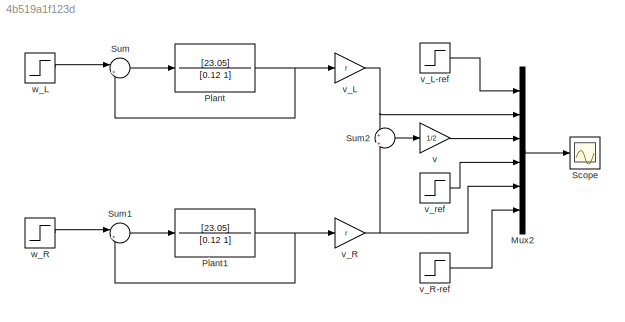
MODEL slx_4b519a1f123d
KIND model
CONFIG AbsTol = auto
CONFIG FixedStep = 0.002
CONFIG MaxStep = .1
CONFIG MinStep = auto
CONFIG PreLoadFcn = load_inputs\n
CONFIG RelTol = 1e-3
CONFIG SampleTimeConstraint = Unconstrained
CONFIG Solver = ode1
CONFIG SolverMode = Auto
CONFIG SolverName = ode1
CONFIG StartTime = 0.0
CONFIG StopTime = 3.14
BLOCK [Mux] Mux2
  DisplayOption = bar
  Inputs = 6
  Ports = [6, 1]
BLOCK [TransferFcn] Plant
  Denominator = [0.12 1]
  Numerator = [23.05]
BLOCK [TransferFcn] Plant1
  Denominator = [0.12 1]
  Numerator = [23.05]
BLOCK [Scope] Scope
  Ports = [1]
  ScopeSpecificationString = Simulink.scopes.TimeScopeBlockCfg('CurrentConfiguration', extmgr.ConfigurationSet(extmgr.Configuration('Core','General UI',true),extmgr.Configuration('Core','Source UI',true),extmgr.Configuration('Sources','WiredSimulink',true,'DataLoggingVariableName','Results','DataLogging',true,'DataLoggingSaveFormat','StructureWithTime'),extmgr.Configuration('Visuals','Time Domain',true,'SerializedDisplays',{s...<+1556ch>
BLOCK [Sum] Sum
  IconShape = round
  InputSameDT = off
  Inputs = |+-
  OutDataTypeStr = Inherit: Inherit via internal rule
  Ports = [2, 1]
  SaturateOnIntegerOverflow = off
BLOCK [Sum] Sum1
  IconShape = round
  InputSameDT = off
  Inputs = |+-
  OutDataTypeStr = Inherit: Inherit via internal rule
  Ports = [2, 1]
  SaturateOnIntegerOverflow = off
BLOCK [Sum] Sum2
  IconShape = round
  InputSameDT = off
  Inputs = +|+
  OutDataTypeStr = Inherit: Inherit via internal rule
  Ports = [2, 1]
  SaturateOnIntegerOverflow = off
BLOCK [Gain] v
  Gain = 1/2
  OutDataTypeStr = Inherit: Inherit via internal rule
  ParamDataTypeStr = Inherit: Inherit via internal rule
  SaturateOnIntegerOverflow = off
BLOCK [Gain] v_L
  Gain = r
  OutDataTypeStr = Inherit: Inherit via internal rule
  ParamDataTypeStr = Inherit: Inherit via internal rule
  SaturateOnIntegerOverflow = off
BLOCK [Step] v_L-ref
  After = v_L
  SampleTime = 0
  Time = 0
BLOCK [Gain] v_R
  Gain = r
  OutDataTypeStr = Inherit: Inherit via internal rule
  ParamDataTypeStr = Inherit: Inherit via internal rule
  SaturateOnIntegerOverflow = off
BLOCK [Step] v_R-ref
  After = v_R
  SampleTime = 0
  Time = 0
BLOCK [Step] v_ref
  After = v_P
  SampleTime = 0
  Time = 0
BLOCK [Step] w_L
  After = w_L
  SampleTime = 0
  Time = 0
BLOCK [Step] w_R
  After = w_R
  SampleTime = 0
  Time = 0
LINE Mux2:1 -> Scope:1
NET Plant1:1 -> Sum1:2, v_R:1
NET Plant:1 -> Sum:2, v_L:1
LINE Sum1:1 -> Plant1:1
LINE Sum2:1 -> v:1
LINE Sum:1 -> Plant:1
LINE v:1 -> Mux2:3
LINE v_L-ref:1 -> Mux2:1
NET v_L:1 -> Mux2:2, Sum2:1
LINE v_R-ref:1 -> Mux2:6
NET v_R:1 -> Mux2:5, Sum2:2
LINE v_ref:1 -> Mux2:4
LINE w_L:1 -> Sum:1
LINE w_R:1 -> Sum1:1
note: NET lines group one-source signal fan-out (src -> all destinations, sorted); 1:1 wires keep LINE
